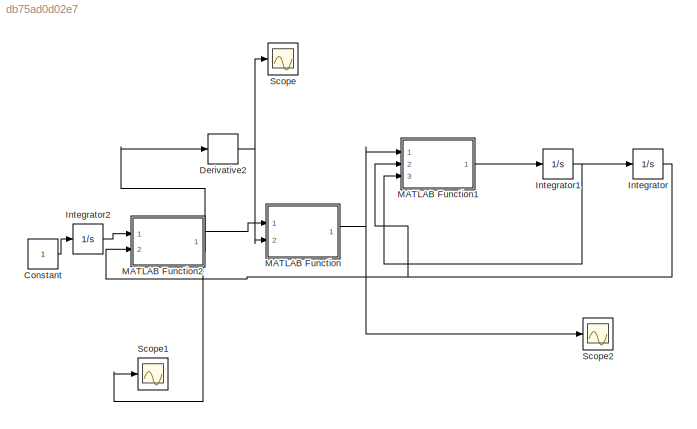
MODEL slx_db75ad0d02e7
KIND model
CONFIG AbsTol = auto
CONFIG EnableMultiTasking = off
CONFIG FixedStep = auto
CONFIG MaxStep = 0.01
CONFIG MinStep = 0.001
CONFIG RelTol = 1e-3
CONFIG SampleTimeConstraint = Unconstrained
CONFIG Solver = VariableStepAuto
CONFIG SolverName = VariableStepAuto
CONFIG StartTime = 0.0
CONFIG StopTime = 10.0
BLOCK [Constant] Constant
BLOCK [Derivative] Derivative2
BLOCK [Integrator] Integrator
  InitialCondition = [0;0]
  Ports = [1, 1]
BLOCK [Integrator] Integrator1
  InitialCondition = [0;0]
  Ports = [1, 1]
BLOCK [Integrator] Integrator2
  Ports = [1, 1]
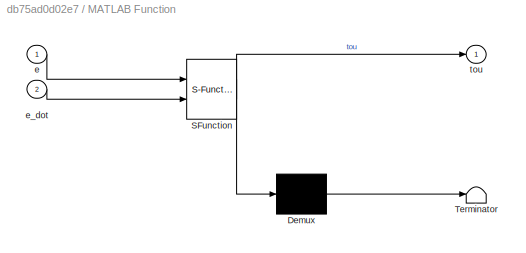
BLOCK [SubSystem] MATLAB Function
  ErrorFcn = Stateflow.Translate.translate
  PermitHierarchicalResolution = ExplicitOnly
  Ports = [2, 1]
  RequestExecContextInheritance = off
  SFBlockType = MATLAB Function
  TreatAsAtomicUnit = on
BLOCK [Demux] MATLAB Function/ Demux 
  Outputs = 1
  Ports = [1, 1]
BLOCK [S-Function] MATLAB Function/ SFunction 
  EnableBusSupport = on
  FunctionName = sf_sfun
  PortCounts = [2 2]
  Ports = [2, 2]
  SFcnIsStateOwnerBlock = off
  SFunctionDeploymentMode = off
  Tag = Stateflow S-Function ass3_2 2
BLOCK [Terminator] MATLAB Function/ Terminator 
BLOCK [Inport] MATLAB Function/e
  IconDisplay = Port number
BLOCK [Inport] MATLAB Function/e_dot
  IconDisplay = Port number
  Port = 2
BLOCK [Outport] MATLAB Function/tou
  IconDisplay = Port number
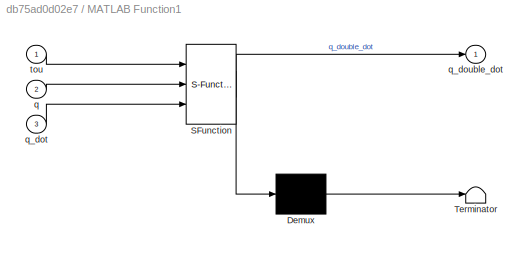
BLOCK [SubSystem] MATLAB Function1
  ErrorFcn = Stateflow.Translate.translate
  PermitHierarchicalResolution = ExplicitOnly
  Ports = [3, 1]
  RequestExecContextInheritance = off
  SFBlockType = MATLAB Function
  TreatAsAtomicUnit = on
BLOCK [Demux] MATLAB Function1/ Demux 
  Outputs = 1
  Ports = [1, 1]
BLOCK [S-Function] MATLAB Function1/ SFunction 
  EnableBusSupport = on
  FunctionName = sf_sfun
  PortCounts = [3 2]
  Ports = [3, 2]
  SFcnIsStateOwnerBlock = off
  SFunctionDeploymentMode = off
  Tag = Stateflow S-Function ass3_2 1
BLOCK [Terminator] MATLAB Function1/ Terminator 
BLOCK [Inport] MATLAB Function1/q
  IconDisplay = Port number
  Port = 2
BLOCK [Inport] MATLAB Function1/q_dot
  IconDisplay = Port number
  Port = 3
BLOCK [Outport] MATLAB Function1/q_double_dot
  IconDisplay = Port number
BLOCK [Inport] MATLAB Function1/tou
  IconDisplay = Port number
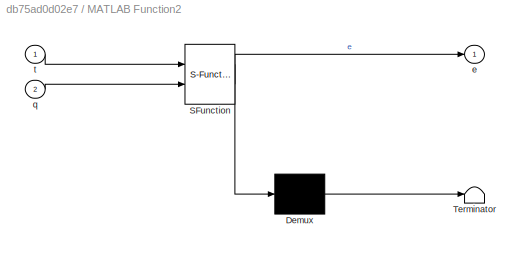
BLOCK [SubSystem] MATLAB Function2
  ErrorFcn = Stateflow.Translate.translate
  PermitHierarchicalResolution = ExplicitOnly
  Ports = [2, 1]
  RequestExecContextInheritance = off
  SFBlockType = MATLAB Function
  TreatAsAtomicUnit = on
BLOCK [Demux] MATLAB Function2/ Demux 
  Outputs = 1
  Ports = [1, 1]
BLOCK [S-Function] MATLAB Function2/ SFunction 
  EnableBusSupport = on
  FunctionName = sf_sfun
  PortCounts = [2 2]
  Ports = [2, 2]
  SFcnIsStateOwnerBlock = off
  SFunctionDeploymentMode = off
  Tag = Stateflow S-Function ass3_2 3
BLOCK [Terminator] MATLAB Function2/ Terminator 
BLOCK [Outport] MATLAB Function2/e
  IconDisplay = Port number
BLOCK [Inport] MATLAB Function2/q
  IconDisplay = Port number
  Port = 2
BLOCK [Inport] MATLAB Function2/t
  IconDisplay = Port number
BLOCK [Scope] Scope
  Floating = off
  NumInputPorts = 1
  Ports = [1]
  ScopeSpecificationString = Simulink.scopes.TimeScopeBlockCfg('CurrentConfiguration', extmgr.ConfigurationSet(extmgr.Configuration('Core','General UI',true),extmgr.Configuration('Core','Source UI',true),extmgr.Configuration('Sources','WiredSimulink',true),extmgr.Configuration('Visuals','Time Domain',true,'SerializedDisplays',{struct('MinYLimReal','-0.812','MaxYLimReal','1.66481','YLabelReal','','MinYLimMag','0.00000','MaxYLi...<+1374ch>
BLOCK [Scope] Scope1
  Floating = off
  NumInputPorts = 1
  Ports = [1]
  ScopeSpecificationString = Simulink.scopes.TimeScopeBlockCfg('CurrentConfiguration', extmgr.ConfigurationSet(extmgr.Configuration('Core','General UI',true),extmgr.Configuration('Core','Source UI',true),extmgr.Configuration('Sources','WiredSimulink',true,'DataLoggingVariableName','ScopeData1'),extmgr.Configuration('Visuals','Time Domain',true,'SerializedDisplays',{struct('MinYLimReal','-1.478','MaxYLimReal','0.21205','YLabel...<+1419ch>
BLOCK [Scope] Scope2
  Floating = off
  NumInputPorts = 1
  Ports = [1]
  ScopeSpecificationString = Simulink.scopes.TimeScopeBlockCfg('CurrentConfiguration', extmgr.ConfigurationSet(extmgr.Configuration('Core','General UI',true),extmgr.Configuration('Core','Source UI',true),extmgr.Configuration('Sources','WiredSimulink',true,'DataLoggingVariableName','ScopeData2'),extmgr.Configuration('Visuals','Time Domain',true,'SerializedDisplays',{struct('MinYLimReal','-28.06273','MaxYLimReal','234.49358','Y...<+1435ch>
LINE Constant:1 -> Integrator2:1
NET Derivative2:1 -> MATLAB Function:2, Scope:1
NET Integrator1:1 -> Integrator:1, MATLAB Function1:3
LINE Integrator2:1 -> MATLAB Function2:1
NET Integrator:1 -> MATLAB Function1:2, MATLAB Function2:2
LINE MATLAB Function1:1 -> Integrator1:1
NET MATLAB Function2:1 -> Derivative2:1, MATLAB Function:1, Scope1:1
NET MATLAB Function:1 -> MATLAB Function1:1, Scope2:1
note: NET lines group one-source signal fan-out (src -> all destinations, sorted); 1:1 wires keep LINE
CHART MATLAB Function1 states=1 transitions=1
  STATE_LABEL 'eML_blk_kernel()'
  STATE_LABEL 'SCRIPT:\nfunction q_double_dot = fcn(tou,q,q_dot)\n\nm1=3.473;\nm2=0.196;\na1=1;  \na2=1;\ng=9.81;\nf1=5.3;\nf2=1.1;\n\nM=[(m1+m2)*a1*a1+m2*a2*a2+2*m2*a1*a2*cos(q(2)),m2*a2*a2+m2*a1*a2*cos(q(2));m2*a2*a2+m2*a1*a2*cos(q(2)),m2*a2*a2];  \n\nV=[-m2*a1*a2*(2* q_dot(1)*q_dot(2)+q_dot(2)*q_dot(2))*sin(q(2));m2*a1*a2*q(1)*q(1)*sin(q(2))];\n\nF=[f1,0;0,f2];\n\nG=[(m1+m2)*g*a1*cos(q(1))+m2*g*a2*cos(q(1)+q(2)); m2*g*a2*cos(...<+53ch>'
CHART MATLAB Function states=1 transitions=1
  STATE_LABEL 'eML_blk_kernel()'
  STATE_LABEL 'SCRIPT:\nfunction tou =  fcn(e,e_dot)  \n  \nKp=[200,10;10,200];\nKd=[200,10;10,200];\n\ntou = -Kp*e-Kd*e_dot; \n\n\n\n\n\n'
CHART MATLAB Function2 states=1 transitions=1
  STATE_LABEL 'eML_blk_kernel()'
  STATE_LABEL 'SCRIPT:\nfunction e=fcn(t,q) \n\nqd=[pi/3+pi/6*sin(t);pi/4+pi/6*cos(t)]; \n\ne=q-qd;\n\n'
